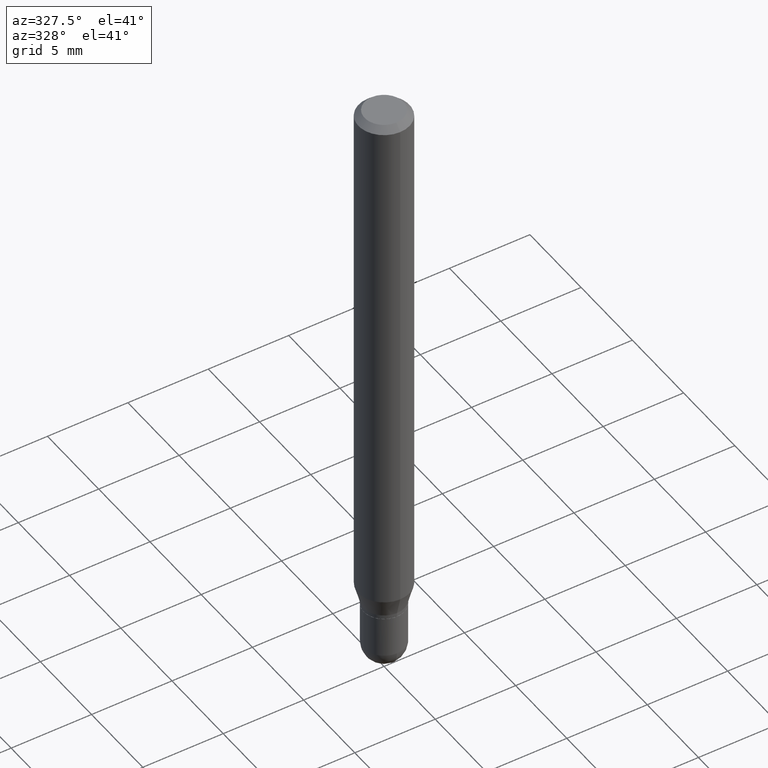
[diagram: clean part render]
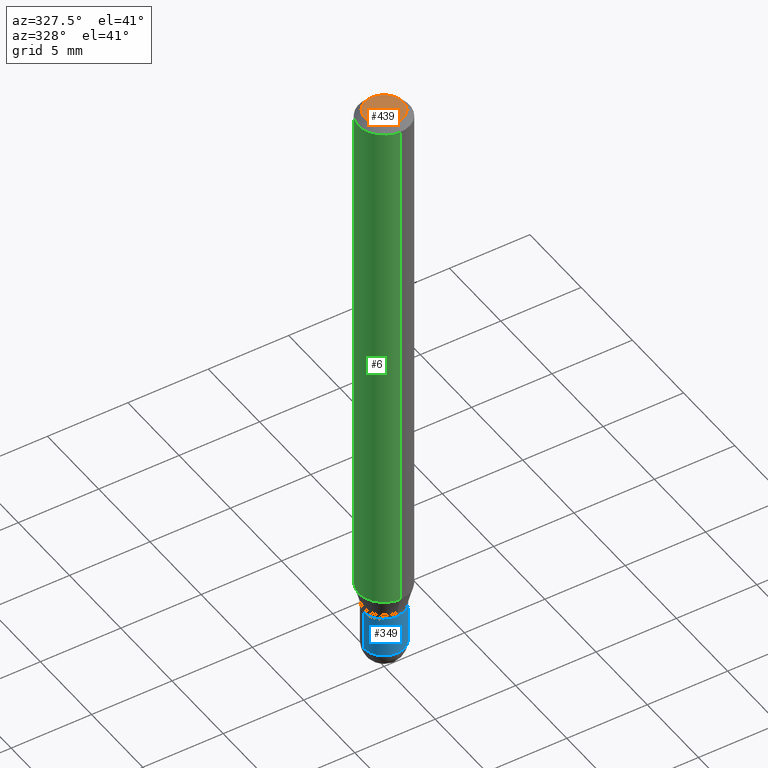
[diagram: same view with three faces highlighted in distinct colors, each labeled with its STEP entity id]
A machine part, auxiliary view with three faces highlighted in distinct colors.
Their STEP definitions:

[orange] entity #439 — the highlighted planar face has unit normal (0, -0, -1).
#9 = DIRECTION ( 'NONE',  ( 6.982962677686265922E-15, 1.000000000000000000, -3.491663485040367379E-15 ) ) ;
#27 = CARTESIAN_POINT ( 'NONE',  ( 3.840629472727447874E-16, 0.04749999999999999362, -4.939923113072090255E-16 ) ) ;
#53 = CARTESIAN_POINT ( 'NONE',  ( 3.316907271900976096E-16, 0.04749999999999999362, -3.299231634233132902E-16 ) ) ;
#87 = CARTESIAN_POINT ( 'NONE',  ( -3.773273898774340269E-16, -0.04749999999999999362, -1.622842802283741865E-16 ) ) ;
#90 = PLANE ( 'NONE',  #263 ) ;
#107 = AXIS2_PLACEMENT_3D ( 'NONE', #462, #419, #149 ) ;
#111 = DIRECTION ( 'NONE',  ( -2.445341614175428300E-29, 3.491663485040367379E-15, 1.000000000000000000 ) ) ;
#147 = ORIENTED_EDGE ( 'NONE', *, *, #236, .T. ) ;
#149 = DIRECTION ( 'NONE',  ( -6.982962677686266711E-15, -1.000000000000000000, 3.491663485040367379E-15 ) ) ;
#163 = EDGE_CURVE ( 'NONE', #448, #267, #201, .T. ) ;
#178 = FACE_OUTER_BOUND ( 'NONE', #221, .T. ) ;
#196 = CARTESIAN_POINT ( 'NONE',  ( 8.024102298455857291E-45, -1.145748505375774166E-30, -3.281382957677916183E-16 ) ) ;
#201 = CIRCLE ( 'NONE', #388, 0.04749999999999999362 ) ;
#221 = EDGE_LOOP ( 'NONE', ( #147, #400 ) ) ;
#236 = EDGE_CURVE ( 'NONE', #267, #448, #330, .T. ) ;
#263 = AXIS2_PLACEMENT_3D ( 'NONE', #53, #337, #9 ) ;
#267 = VERTEX_POINT ( 'NONE', #27 ) ;
#330 = CIRCLE ( 'NONE', #107, 0.04749999999999999362 ) ;
#337 = DIRECTION ( 'NONE',  ( 2.445341614175428020E-29, -3.491663485040367379E-15, -1.000000000000000000 ) ) ;
#381 = DIRECTION ( 'NONE',  ( -6.982962677686266711E-15, -1.000000000000000000, 3.491663485040367379E-15 ) ) ;
#388 = AXIS2_PLACEMENT_3D ( 'NONE', #196, #111, #381 ) ;
#400 = ORIENTED_EDGE ( 'NONE', *, *, #163, .T. ) ;
#419 = DIRECTION ( 'NONE',  ( -2.445341614175428300E-29, 3.491663485040367379E-15, 1.000000000000000000 ) ) ;
#439 = ADVANCED_FACE ( 'NONE', ( #178 ), #90, .F. ) ;
#448 = VERTEX_POINT ( 'NONE', #87 ) ;
#462 = CARTESIAN_POINT ( 'NONE',  ( 8.024102298455857291E-45, -1.145748505375774166E-30, -3.281382957677916183E-16 ) ) ;

[blue] entity #349 — the highlighted cylindrical surface (edge-blend (fillet) strip) has radius 1.27 mm, axis along (-0, 0, 1).
#3 = EDGE_CURVE ( 'NONE', #261, #339, #460, .T. ) ;
#4 = AXIS2_PLACEMENT_3D ( 'NONE', #458, #273, #65 ) ;
#7 = DIRECTION ( 'NONE',  ( 1.000000000000000000, -6.982962677686274599E-15, 0.000000000000000000 ) ) ;
#21 = DIRECTION ( 'NONE',  ( 1.000000000000000000, -6.982962677686275388E-15, 0.000000000000000000 ) ) ;
#38 = EDGE_CURVE ( 'NONE', #454, #306, #309, .T. ) ;
#48 = CARTESIAN_POINT ( 'NONE',  ( 0.05000000000000000278, -5.062647941322559931E-15, -1.350000000000000089 ) ) ;
#57 = DIRECTION ( 'NONE',  ( -2.445468806185136597E-29, 3.491481338843145583E-15, 1.000000000000000000 ) ) ;
#65 = DIRECTION ( 'NONE',  ( 1.000000000000000000, -6.982962677686275388E-15, 0.000000000000000000 ) ) ;
#119 = EDGE_CURVE ( 'NONE', #224, #454, #477, .T. ) ;
#124 = LINE ( 'NONE', #344, #464 ) ;
#151 = CYLINDRICAL_SURFACE ( 'NONE', #257, 0.04999999999999999584 ) ;
#153 = DIRECTION ( 'NONE',  ( -2.445468806185136597E-29, 3.491481338843145583E-15, 1.000000000000000000 ) ) ;
#161 = CARTESIAN_POINT ( 'NONE',  ( -0.04999999999999999584, 3.552713678800500634E-16, -2.459467545127452961E-30 ) ) ;
#165 = DIRECTION ( 'NONE',  ( -2.445468806185136877E-29, 3.491481338843145188E-15, 1.000000000000000000 ) ) ;
#176 = DIRECTION ( 'NONE',  ( -2.445468806185136877E-29, 3.491481338843145188E-15, 1.000000000000000000 ) ) ;
#187 = EDGE_CURVE ( 'NONE', #306, #339, #124, .T. ) ;
#202 = LINE ( 'NONE', #161, #227 ) ;
#215 = CARTESIAN_POINT ( 'NONE',  ( -0.04999999999999999584, -4.532802506500353644E-15, -1.450000000000000178 ) ) ;
#217 = CARTESIAN_POINT ( 'NONE',  ( 3.301382888349935078E-29, -4.713499807438246596E-15, -1.350000000000000089 ) ) ;
#224 = VERTEX_POINT ( 'NONE', #215 ) ;
#227 = VECTOR ( 'NONE', #165, 39.37007874015748143 ) ;
#232 = ORIENTED_EDGE ( 'NONE', *, *, #294, .F. ) ;
#249 = AXIS2_PLACEMENT_3D ( 'NONE', #217, #153, #7 ) ;
#253 = ORIENTED_EDGE ( 'NONE', *, *, #187, .T. ) ;
#257 = AXIS2_PLACEMENT_3D ( 'NONE', #354, #317, #390 ) ;
#261 = VERTEX_POINT ( 'NONE', #397 ) ;
#273 = DIRECTION ( 'NONE',  ( -2.445468806185136597E-29, 3.491481338843145583E-15, 1.000000000000000000 ) ) ;
#294 = EDGE_CURVE ( 'NONE', #224, #261, #202, .T. ) ;
#301 = AXIS2_PLACEMENT_3D ( 'NONE', #391, #57, #21 ) ;
#306 = VERTEX_POINT ( 'NONE', #466 ) ;
#309 = CIRCLE ( 'NONE', #4, 0.04999999999999999584 ) ;
#317 = DIRECTION ( 'NONE',  ( -2.445468806185136597E-29, 3.491481338843145583E-15, 1.000000000000000000 ) ) ;
#339 = VERTEX_POINT ( 'NONE', #48 ) ;
#344 = CARTESIAN_POINT ( 'NONE',  ( 0.04999999999999999584, -3.491481338843132862E-16, 2.438088387897967896E-30 ) ) ;
#349 = ADVANCED_FACE ( 'NONE', ( #504 ), #151, .T. ) ;
#350 = ORIENTED_EDGE ( 'NONE', *, *, #119, .T. ) ;
#354 = CARTESIAN_POINT ( 'NONE',  ( 0.000000000000000000, 0.000000000000000000, 0.000000000000000000 ) ) ;
#386 = EDGE_LOOP ( 'NONE', ( #232, #350, #497, #253, #411 ) ) ;
#390 = DIRECTION ( 'NONE',  ( 1.000000000000000000, -6.982962677686265922E-15, 4.876176775795936353E-29 ) ) ;
#391 = CARTESIAN_POINT ( 'NONE',  ( 3.545929768968448850E-29, -5.062647941322561509E-15, -1.450000000000000178 ) ) ;
#397 = CARTESIAN_POINT ( 'NONE',  ( -0.05000000000000000278, -4.532802506500353644E-15, -1.350000000000000089 ) ) ;
#411 = ORIENTED_EDGE ( 'NONE', *, *, #3, .F. ) ;
#454 = VERTEX_POINT ( 'NONE', #481 ) ;
#458 = CARTESIAN_POINT ( 'NONE',  ( 3.545929768968448850E-29, -5.062647941322561509E-15, -1.450000000000000178 ) ) ;
#460 = CIRCLE ( 'NONE', #249, 0.05000000000000000278 ) ;
#464 = VECTOR ( 'NONE', #176, 39.37007874015748143 ) ;
#466 = CARTESIAN_POINT ( 'NONE',  ( 0.04999999999999999584, -5.237222008264717388E-15, -1.450000000000000178 ) ) ;
#477 = CIRCLE ( 'NONE', #301, 0.04999999999999999584 ) ;
#481 = CARTESIAN_POINT ( 'NONE',  ( -3.491481338842782805E-16, -0.05000000000000513756, -1.449999999999999734 ) ) ;
#497 = ORIENTED_EDGE ( 'NONE', *, *, #38, .T. ) ;
#504 = FACE_OUTER_BOUND ( 'NONE', #386, .T. ) ;

[green] entity #6 — the highlighted cylindrical surface (edge-blend (fillet) strip) has radius 1.5875 mm, axis along (-0, 0, 1).
#1 = DIRECTION ( 'NONE',  ( -2.445341614175428020E-29, 3.491663485040367379E-15, 1.000000000000000000 ) ) ;
#6 = ADVANCED_FACE ( 'NONE', ( #444 ), #319, .T. ) ;
#10 = CARTESIAN_POINT ( 'NONE',  ( 0.000000000000000000, 0.000000000000000000, 0.000000000000000000 ) ) ;
#30 = CIRCLE ( 'NONE', #335, 0.06250000000000000000 ) ;
#45 = VERTEX_POINT ( 'NONE', #162 ) ;
#54 = ORIENTED_EDGE ( 'NONE', *, *, #325, .F. ) ;
#67 = CARTESIAN_POINT ( 'NONE',  ( -4.364351673553598192E-16, -0.06250000000000448253, -1.293349364905389098 ) ) ;
#68 = DIRECTION ( 'NONE',  ( -2.445341614175428300E-29, 3.491663485040367379E-15, 1.000000000000000000 ) ) ;
#97 = VERTEX_POINT ( 'NONE', #260 ) ;
#128 = ORIENTED_EDGE ( 'NONE', *, *, #437, .F. ) ;
#162 = CARTESIAN_POINT ( 'NONE',  ( 4.440892098500943678E-16, 0.06249999999999551054, -1.293349364905389765 ) ) ;
#174 = LINE ( 'NONE', #213, #376 ) ;
#182 = DIRECTION ( 'NONE',  ( -2.445341614175428300E-29, 3.491663485040367379E-15, 1.000000000000000000 ) ) ;
#204 = CARTESIAN_POINT ( 'NONE',  ( 3.668012421263222920E-31, -5.237495227560666341E-17, -0.01500000000000032904 ) ) ;
#206 = CARTESIAN_POINT ( 'NONE',  ( -4.364351673553912750E-16, -0.06250000000000005551, -0.01500000000000011047 ) ) ;
#213 = CARTESIAN_POINT ( 'NONE',  ( 4.440892098500625669E-16, 0.06250000000000000000, -2.182289678150229612E-16 ) ) ;
#214 = EDGE_CURVE ( 'NONE', #377, #268, #258, .T. ) ;
#216 = ORIENTED_EDGE ( 'NONE', *, *, #214, .T. ) ;
#256 = DIRECTION ( 'NONE',  ( -2.445341614175428300E-29, 3.491663485040367379E-15, 1.000000000000000000 ) ) ;
#258 = LINE ( 'NONE', #410, #275 ) ;
#260 = CARTESIAN_POINT ( 'NONE',  ( 4.440892098500943678E-16, 0.06249999999999995143, -0.01500000000000054588 ) ) ;
#268 = VERTEX_POINT ( 'NONE', #206 ) ;
#275 = VECTOR ( 'NONE', #1, 39.37007874015748143 ) ;
#319 = CYLINDRICAL_SURFACE ( 'NONE', #392, 0.06250000000000000000 ) ;
#325 = EDGE_CURVE ( 'NONE', #97, #268, #438, .T. ) ;
#335 = AXIS2_PLACEMENT_3D ( 'NONE', #489, #256, #471 ) ;
#342 = DIRECTION ( 'NONE',  ( -2.445341614175428020E-29, 3.491663485040367379E-15, 1.000000000000000000 ) ) ;
#359 = DIRECTION ( 'NONE',  ( -6.982962677686265922E-15, -1.000000000000000000, 3.483106191921935554E-15 ) ) ;
#376 = VECTOR ( 'NONE', #342, 39.37007874015748143 ) ;
#377 = VERTEX_POINT ( 'NONE', #67 ) ;
#380 = DIRECTION ( 'NONE',  ( -6.982962677686265922E-15, -1.000000000000000000, 3.491663485040367379E-15 ) ) ;
#392 = AXIS2_PLACEMENT_3D ( 'NONE', #10, #182, #380 ) ;
#402 = AXIS2_PLACEMENT_3D ( 'NONE', #204, #68, #359 ) ;
#410 = CARTESIAN_POINT ( 'NONE',  ( -4.364351673553916201E-16, -0.06250000000000000000, 2.182289678150229612E-16 ) ) ;
#437 = EDGE_CURVE ( 'NONE', #45, #97, #174, .T. ) ;
#438 = CIRCLE ( 'NONE', #402, 0.06250000000000000000 ) ;
#442 = EDGE_CURVE ( 'NONE', #45, #377, #30, .T. ) ;
#444 = FACE_OUTER_BOUND ( 'NONE', #495, .T. ) ;
#471 = DIRECTION ( 'NONE',  ( -6.982962677686265922E-15, -1.000000000000000000, 4.370956789862821150E-15 ) ) ;
#489 = CARTESIAN_POINT ( 'NONE',  ( 3.162681023670509800E-29, -4.515940750840297433E-15, -1.293349364905389320 ) ) ;
#495 = EDGE_LOOP ( 'NONE', ( #128, #498, #216, #54 ) ) ;
#498 = ORIENTED_EDGE ( 'NONE', *, *, #442, .T. ) ;